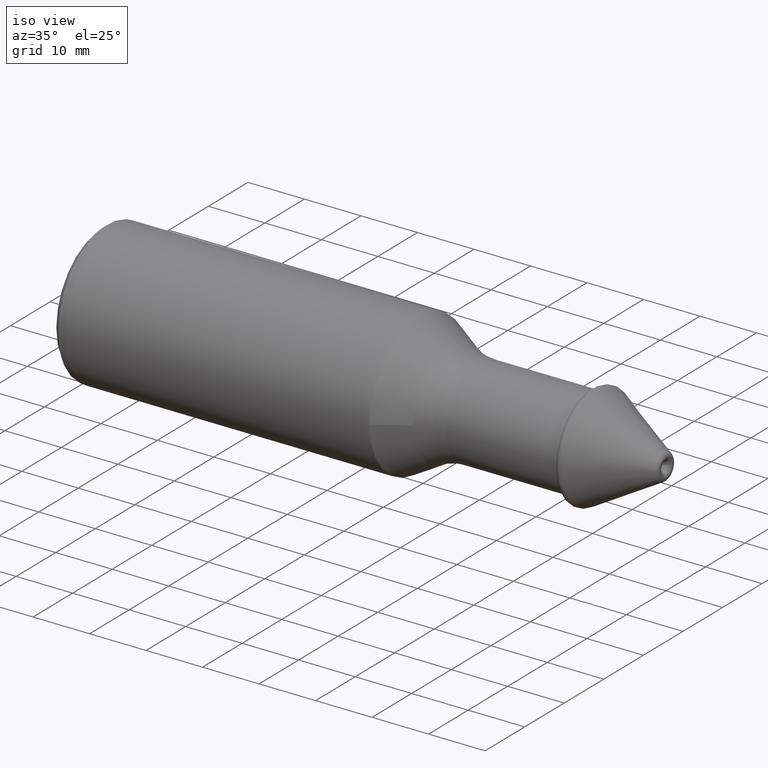
[diagram: clean part render]
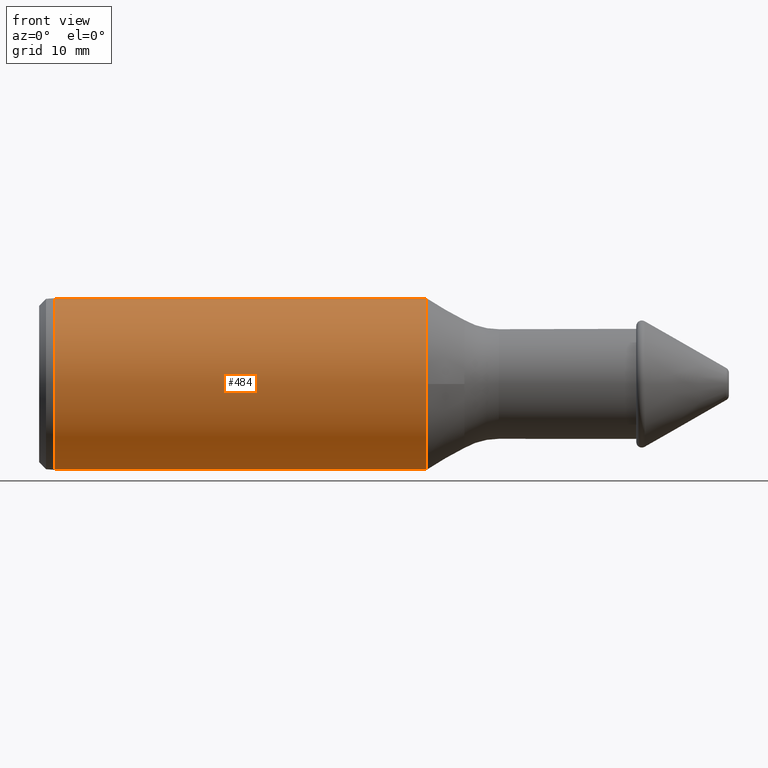
[diagram: tour spotlight — one face highlighted and labeled with its STEP entity id]
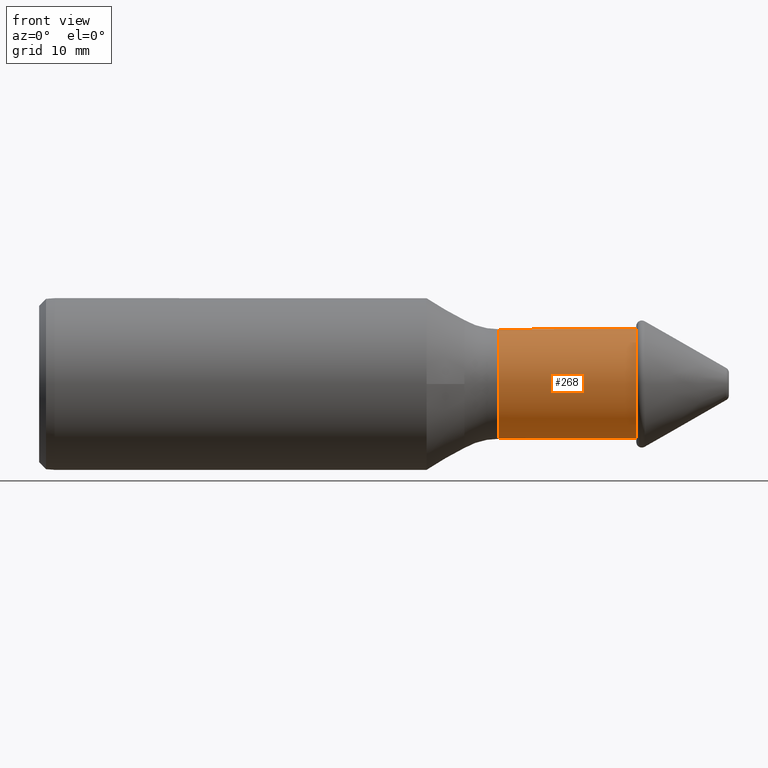
[diagram: tour spotlight — one face highlighted and labeled with its STEP entity id]
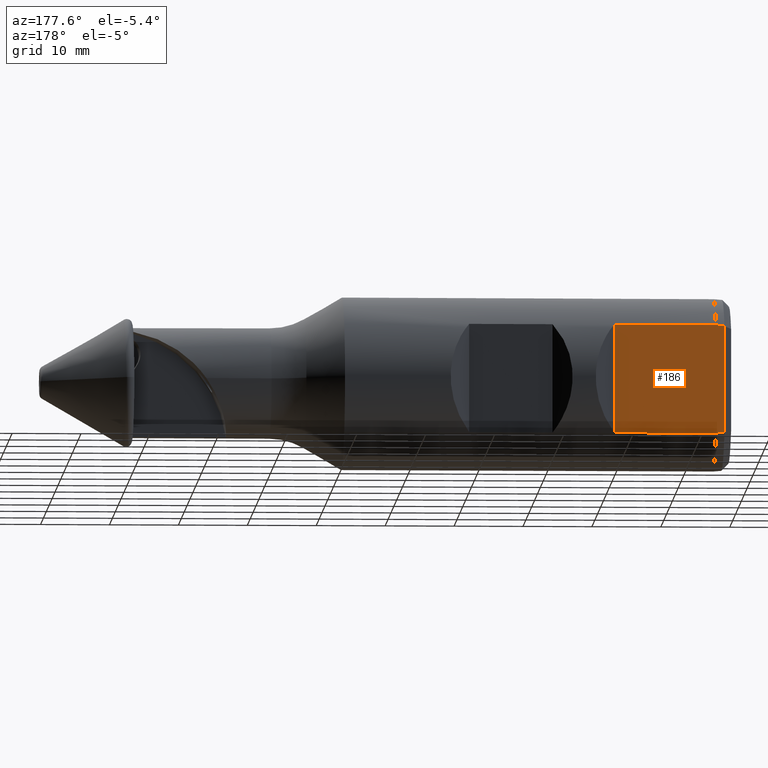
[diagram: tour spotlight — one face highlighted and labeled with its STEP entity id]
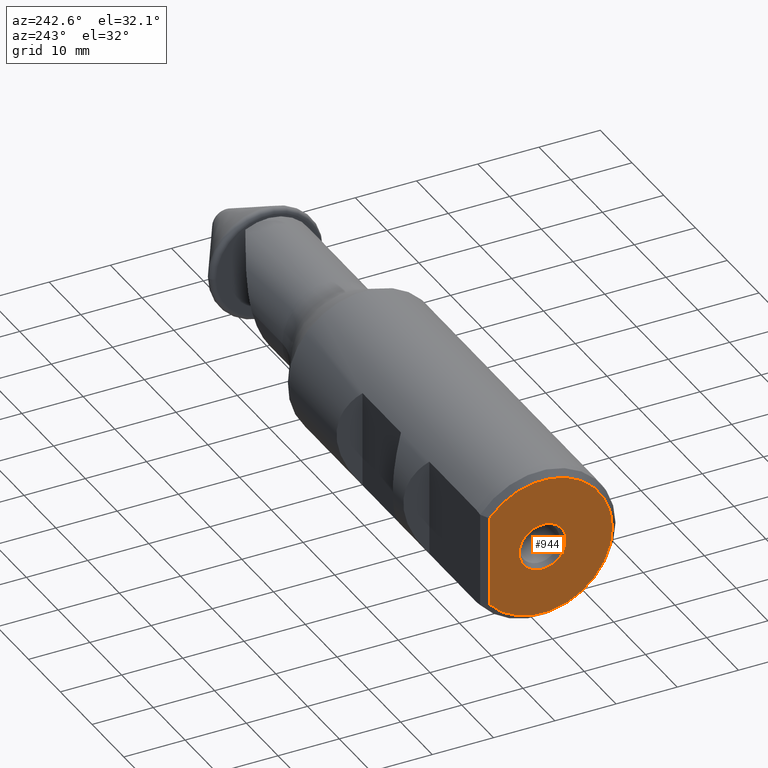
[diagram: tour spotlight — one face highlighted and labeled with its STEP entity id]
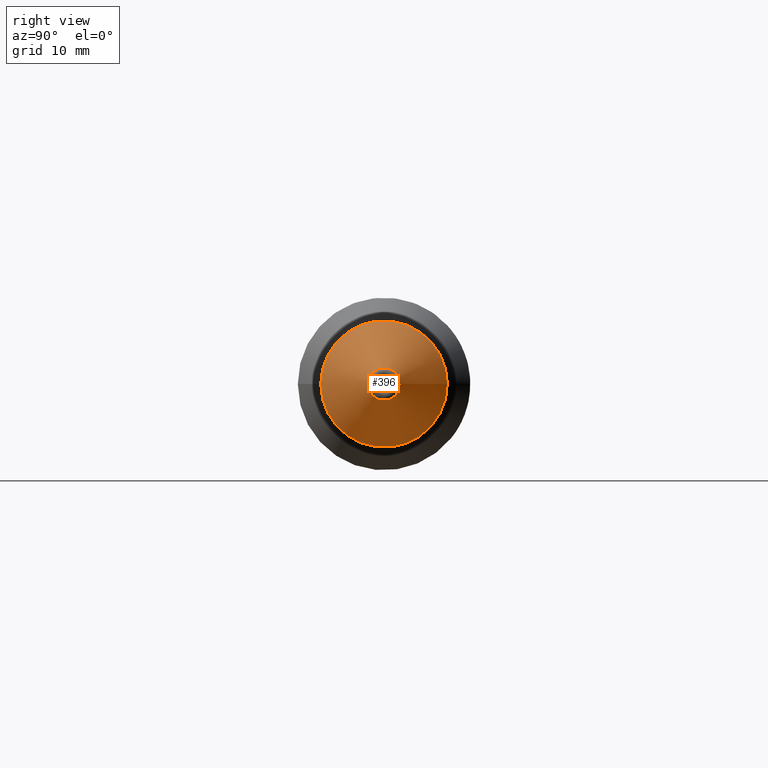
[diagram: tour spotlight — one face highlighted and labeled with its STEP entity id]
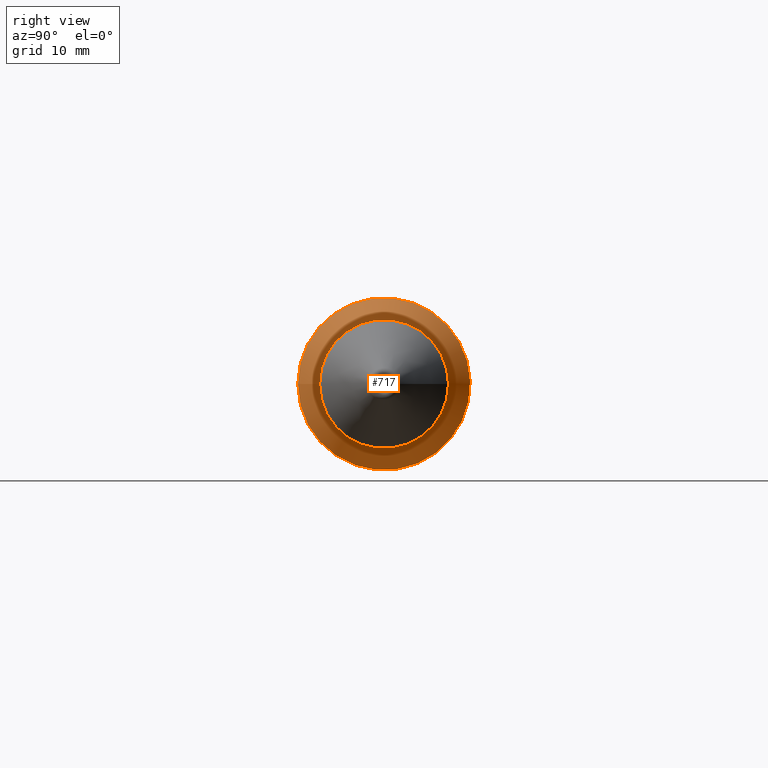
[diagram: tour spotlight — one face highlighted and labeled with its STEP entity id]
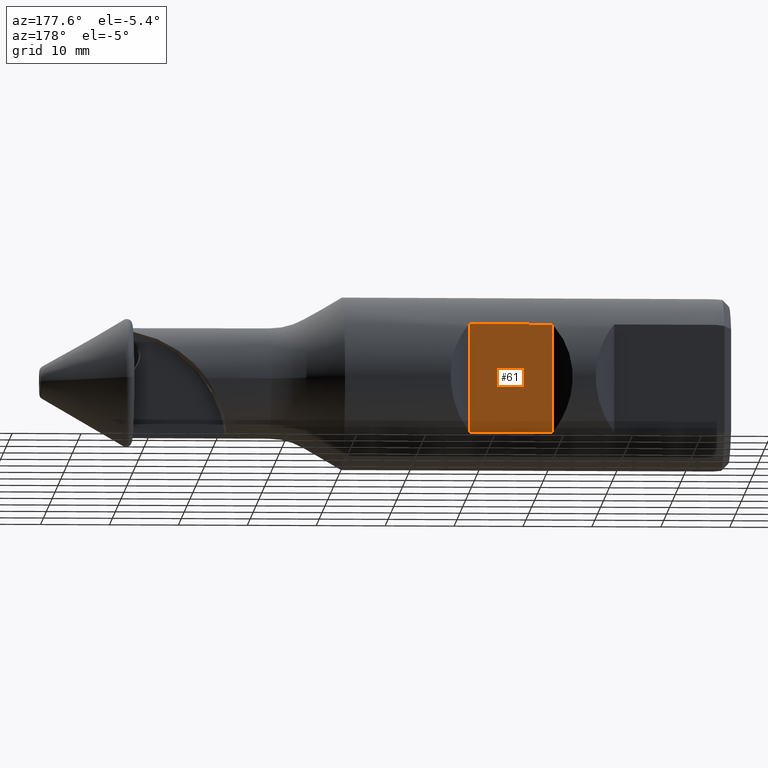
[diagram: tour spotlight — one face highlighted and labeled with its STEP entity id]
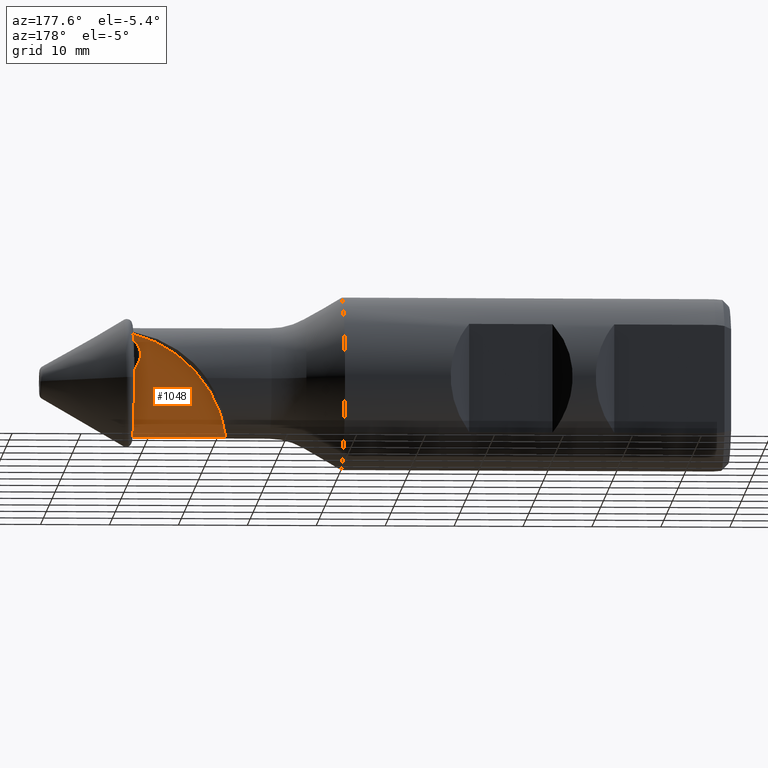
[diagram: tour spotlight — one face highlighted and labeled with its STEP entity id]
A machine part: a face-by-face anatomy tour. The part has 35 B-rep faces; the first image is the clean iso view, then the 8 largest visible faces are spotlighted one at a time (largest first), each with its STEP entity span.

Face 1 — front view, entity #484. In plain terms, the highlighted cylindrical surface (bore or boss wall) has radius 12.5 mm, axis along (1, 0, -0).
Definition (entity closure, byte-faithful):
#4 = DIRECTION ( 'NONE',  ( 1.000000000000000000, 1.331952470251674600E-016, -0.0000000000000000000 ) ) ;
#5 = ORIENTED_EDGE ( 'NONE', *, *, #593, .T. ) ;
#7 = CARTESIAN_POINT ( 'NONE',  ( -86.00282131661441600, 13.59717868338557900, -3.089404912919607500 ) ) ;
#8 = CARTESIAN_POINT ( 'NONE',  ( 0.0000000000000000000, 9.699999999999990400, -7.884161337770830600 ) ) ;
#11 = VERTEX_POINT ( 'NONE', #372 ) ;
#26 = VERTEX_POINT ( 'NONE', #647 ) ;
#30 = VECTOR ( 'NONE', #4, 1000.000000000000000 ) ;
#50 = CARTESIAN_POINT ( 'NONE',  ( -89.90000000000000600, 9.699999999999990400, 7.884161337770824400 ) ) ;
#62 = LINE ( 'NONE', #8, #30 ) ;
#65 = CARTESIAN_POINT ( 'NONE',  ( -1.051676107310939500E-015, 9.700000000000001100, -7.884161337770819100 ) ) ;
#68 = LINE ( 'NONE', #582, #358 ) ;
#89 = AXIS2_PLACEMENT_3D ( 'NONE', #769, #763, #760 ) ;
#109 = CARTESIAN_POINT ( 'NONE',  ( -80.95000000000000300, 9.699999999999979700, 7.884161337770830600 ) ) ;
#163 = EDGE_CURVE ( 'NONE', #698, #1085, #170, .T. ) ;
#170 =( BOUNDED_CURVE ( )  B_SPLINE_CURVE ( 3, ( #306, #7, #574, #50 ),
 .UNSPECIFIED., .F., .T. ) 
 B_SPLINE_CURVE_WITH_KNOTS ( ( 4, 4 ),
 ( 5.600687989903613100, 6.965682624455559400 ),
 .UNSPECIFIED. ) 
 CURVE ( )  GEOMETRIC_REPRESENTATION_ITEM ( )  RATIONAL_B_SPLINE_CURVE ( ( 1.000000000000000000, 0.8506666666666660200, 0.8506666666666660200, 1.000000000000000000 ) ) 
 REPRESENTATION_ITEM ( '' )  );
#193 = ORIENTED_EDGE ( 'NONE', *, *, #539, .T. ) ;
#202 =( BOUNDED_CURVE ( )  B_SPLINE_CURVE ( 3, ( #520, #524, #481, #474 ),
 .UNSPECIFIED., .F., .F. ) 
 B_SPLINE_CURVE_WITH_KNOTS ( ( 4, 4 ),
 ( 5.600687989903613900, 6.965682624455558500 ),
 .UNSPECIFIED. ) 
 CURVE ( )  GEOMETRIC_REPRESENTATION_ITEM ( )  RATIONAL_B_SPLINE_CURVE ( ( 1.000000000000000000, 0.8506666666666664600, 0.8506666666666664600, 1.000000000000000000 ) ) 
 REPRESENTATION_ITEM ( '' )  );
#222 = CARTESIAN_POINT ( 'NONE',  ( -50.72679323706465500, -12.50000000000001200, 0.0000000000000000000 ) ) ;
#230 = AXIS2_PLACEMENT_3D ( 'NONE', #693, #688, #696 ) ;
#262 = AXIS2_PLACEMENT_3D ( 'NONE', #734, #733, #728 ) ;
#282 =( BOUNDED_CURVE ( )  B_SPLINE_CURVE ( 3, ( #754, #862, #735, #732 ),
 .UNSPECIFIED., .F., .F. ) 
 B_SPLINE_CURVE_WITH_KNOTS ( ( 4, 4 ),
 ( 2.459095336313819900, 3.824089970865766700 ),
 .UNSPECIFIED. ) 
 CURVE ( )  GEOMETRIC_REPRESENTATION_ITEM ( )  RATIONAL_B_SPLINE_CURVE ( ( 1.000000000000000000, 0.8506666666666659000, 0.8506666666666659000, 1.000000000000000000 ) ) 
 REPRESENTATION_ITEM ( '' )  );
#306 = CARTESIAN_POINT ( 'NONE',  ( -89.90000000000000600, 9.699999999999990400, -7.884161337770820800 ) ) ;
#341 = DIRECTION ( 'NONE',  ( 1.000000000000000000, 1.331952470251674600E-016, -0.0000000000000000000 ) ) ;
#356 = ORIENTED_EDGE ( 'NONE', *, *, #819, .T. ) ;
#358 = VECTOR ( 'NONE', #644, 1000.000000000000000 ) ;
#370 = VECTOR ( 'NONE', #341, 1000.000000000000000 ) ;
#371 = CARTESIAN_POINT ( 'NONE',  ( -89.90000000000000600, 9.699999999999990400, 7.884161337770824400 ) ) ;
#372 = CARTESIAN_POINT ( 'NONE',  ( -80.95000000000000300, 9.699999999999979700, -7.884161337770830600 ) ) ;
#378 = CARTESIAN_POINT ( 'NONE',  ( -104.6499999999998900, 9.699999999999986900, 7.884161337770819100 ) ) ;
#386 = EDGE_LOOP ( 'NONE', ( #867 ) ) ;
#410 = EDGE_CURVE ( 'NONE', #615, #615, #1017, .T. ) ;
#415 = DIRECTION ( 'NONE',  ( -1.000000000000000000, -1.331952470251674600E-016, 0.0000000000000000000 ) ) ;
#419 = CARTESIAN_POINT ( 'NONE',  ( -89.90000000000000600, 9.699999999999990400, -7.884161337770820800 ) ) ;
#424 = CIRCLE ( 'NONE', #262, 12.50000000000000500 ) ;
#430 = CARTESIAN_POINT ( 'NONE',  ( -104.6499999999998900, 9.699999999999986900, -7.884161337770819100 ) ) ;
#439 = CARTESIAN_POINT ( 'NONE',  ( 0.0000000000000000000, 9.699999999999990400, 7.884161337770830600 ) ) ;
#444 = CARTESIAN_POINT ( 'NONE',  ( -68.85000000000000900, 9.699999999999990400, -7.884161337770813700 ) ) ;
#456 = EDGE_CURVE ( 'NONE', #767, #11, #282, .T. ) ;
#474 = CARTESIAN_POINT ( 'NONE',  ( -68.85000000000000900, 9.699999999999990400, 7.884161337770817300 ) ) ;
#481 = CARTESIAN_POINT ( 'NONE',  ( -64.95282131661443300, 13.59717868338557900, 3.089404912919600400 ) ) ;
#484 = ADVANCED_FACE ( 'NONE', ( #1103, #1049, #521 ), #984, .T. ) ;
#520 = CARTESIAN_POINT ( 'NONE',  ( -68.85000000000000900, 9.699999999999990400, -7.884161337770813700 ) ) ;
#521 = FACE_OUTER_BOUND ( 'NONE', #600, .T. ) ;
#524 = CARTESIAN_POINT ( 'NONE',  ( -64.95282131661443300, 13.59717868338558100, -3.089404912919604800 ) ) ;
#539 = EDGE_CURVE ( 'NONE', #1085, #706, #68, .T. ) ;
#574 = CARTESIAN_POINT ( 'NONE',  ( -86.00282131661444400, 13.59717868338557900, 3.089404912919605300 ) ) ;
#582 = CARTESIAN_POINT ( 'NONE',  ( -1.051676107310939500E-015, 9.700000000000001100, 7.884161337770819100 ) ) ;
#593 = EDGE_CURVE ( 'NONE', #994, #26, #202, .T. ) ;
#600 = EDGE_LOOP ( 'NONE', ( #966, #356, #1082, #193 ) ) ;
#615 = VERTEX_POINT ( 'NONE', #222 ) ;
#628 = ORIENTED_EDGE ( 'NONE', *, *, #456, .T. ) ;
#644 = DIRECTION ( 'NONE',  ( -1.000000000000000000, -1.331952470251674600E-016, 0.0000000000000000000 ) ) ;
#647 = CARTESIAN_POINT ( 'NONE',  ( -68.85000000000000900, 9.699999999999990400, 7.884161337770817300 ) ) ;
#654 = EDGE_CURVE ( 'NONE', #26, #767, #660, .T. ) ;
#660 = LINE ( 'NONE', #439, #826 ) ;
#688 = DIRECTION ( 'NONE',  ( 1.000000000000000000, 1.331952470251674600E-016, -0.0000000000000000000 ) ) ;
#693 = CARTESIAN_POINT ( 'NONE',  ( 0.0000000000000000000, 0.0000000000000000000, 0.0000000000000000000 ) ) ;
#696 = DIRECTION ( 'NONE',  ( -1.331952470251674600E-016, 1.000000000000000000, 0.0000000000000000000 ) ) ;
#698 = VERTEX_POINT ( 'NONE', #419 ) ;
#706 = VERTEX_POINT ( 'NONE', #378 ) ;
#728 = DIRECTION ( 'NONE',  ( 0.0000000000000000000, 1.000000000000000000, 0.0000000000000000000 ) ) ;
#732 = CARTESIAN_POINT ( 'NONE',  ( -80.95000000000000300, 9.699999999999979700, -7.884161337770830600 ) ) ;
#733 = DIRECTION ( 'NONE',  ( 1.000000000000000000, 1.223020211043870700E-016, -0.0000000000000000000 ) ) ;
#734 = CARTESIAN_POINT ( 'NONE',  ( -104.6499999999998900, -1.397236404069421000E-014, 0.0000000000000000000 ) ) ;
#735 = CARTESIAN_POINT ( 'NONE',  ( -84.84717868338560700, 13.59717868338558100, -3.089404912919606200 ) ) ;
#740 = LINE ( 'NONE', #65, #370 ) ;
#754 = CARTESIAN_POINT ( 'NONE',  ( -80.95000000000000300, 9.699999999999979700, 7.884161337770830600 ) ) ;
#760 = DIRECTION ( 'NONE',  ( 0.0000000000000000000, -1.000000000000000000, 0.0000000000000000000 ) ) ;
#763 = DIRECTION ( 'NONE',  ( -1.000000000000000000, -1.223020211043870700E-016, 0.0000000000000000000 ) ) ;
#764 = ORIENTED_EDGE ( 'NONE', *, *, #807, .T. ) ;
#767 = VERTEX_POINT ( 'NONE', #109 ) ;
#769 = CARTESIAN_POINT ( 'NONE',  ( -50.72679323706465500, -7.377446869157477400E-015, 0.0000000000000000000 ) ) ;
#802 = EDGE_LOOP ( 'NONE', ( #628, #764, #5, #907 ) ) ;
#807 = EDGE_CURVE ( 'NONE', #11, #994, #62, .T. ) ;
#819 = EDGE_CURVE ( 'NONE', #1032, #698, #740, .T. ) ;
#826 = VECTOR ( 'NONE', #415, 1000.000000000000000 ) ;
#862 = CARTESIAN_POINT ( 'NONE',  ( -84.84717868338560700, 13.59717868338558100, 3.089404912919606200 ) ) ;
#867 = ORIENTED_EDGE ( 'NONE', *, *, #410, .T. ) ;
#907 = ORIENTED_EDGE ( 'NONE', *, *, #654, .T. ) ;
#949 = EDGE_CURVE ( 'NONE', #706, #1032, #424, .T. ) ;
#966 = ORIENTED_EDGE ( 'NONE', *, *, #949, .T. ) ;
#984 = CYLINDRICAL_SURFACE ( 'NONE', #230, 12.50000000000000500 ) ;
#994 = VERTEX_POINT ( 'NONE', #444 ) ;
#1017 = CIRCLE ( 'NONE', #89, 12.50000000000000500 ) ;
#1032 = VERTEX_POINT ( 'NONE', #430 ) ;
#1049 = FACE_BOUND ( 'NONE', #802, .T. ) ;
#1082 = ORIENTED_EDGE ( 'NONE', *, *, #163, .T. ) ;
#1085 = VERTEX_POINT ( 'NONE', #371 ) ;
#1103 = FACE_OUTER_BOUND ( 'NONE', #386, .T. ) ;

Face 2 — front view, entity #268. In plain terms, the highlighted cylindrical surface (bore or boss wall) has radius 8 mm, axis along (1, 0, -0).
Definition (entity closure, byte-faithful):
#31 = B_SPLINE_CURVE_WITH_KNOTS ( 'NONE', 3,
 ( #667, #678, #649, #645, #643, #638, #636, #634, #632, #622, #621, #617, #607, #602, #596, #592, #589, #583, #575, #572, #567, #559, #554, #546, #540, #537, #536, #529, #526, #519, #515, #510, #505, #500, #498, #491, #487, #482, #468, #465 ),
 .UNSPECIFIED., .F., .F.,
 ( 4, 2, 2, 2, 2, 2, 2, 2, 2, 2, 2, 2, 2, 2, 2, 2, 2, 2, 2, 4 ),
 ( 0.002660857784023647600, 0.004280530319342982900, 0.005900202854662318600, 0.009139547925300996900, 0.01075922046062034200, 0.01237889299593968400, 0.01399856553125902900, 0.01561823806657837300, 0.01723791060189771800, 0.01804774686955739500, 0.01885758313721707200, 0.02047725567253642600, 0.02128709194019610600, 0.02209692820785578300, 0.02290676447551546000, 0.02371660074317514000, 0.02533627327849449800, 0.02614610954615417100, 0.02695594581381384800, 0.02857561834913320200 ),
 .UNSPECIFIED. ) ;
#35 = AXIS2_PLACEMENT_3D ( 'NONE', #789, #785, #781 ) ;
#119 = CARTESIAN_POINT ( 'NONE',  ( -20.32288670554150700, -3.658987650883321000E-015, 0.0000000000000000000 ) ) ;
#132 = CARTESIAN_POINT ( 'NONE',  ( 9.594751758996267200, 0.0000000000000000000, 0.0000000000000000000 ) ) ;
#138 = EDGE_CURVE ( 'NONE', #166, #937, #242, .T. ) ;
#145 = VECTOR ( 'NONE', #635, 1000.000000000000000 ) ;
#166 = VERTEX_POINT ( 'NONE', #1087 ) ;
#182 = CIRCLE ( 'NONE', #35, 8.000000000000005300 ) ;
#218 = DIRECTION ( 'NONE',  ( 0.0000000000000000000, -1.000000000000000000, 0.0000000000000000000 ) ) ;
#234 = DIRECTION ( 'NONE',  ( 1.000000000000000000, 1.223020211043870700E-016, -0.0000000000000000000 ) ) ;
#236 = CARTESIAN_POINT ( 'NONE',  ( -40.25299999999999300, 7.999999999999998200, 0.0000000000000000000 ) ) ;
#242 = CIRCLE ( 'NONE', #948, 8.000000000000003600 ) ;
#247 = EDGE_LOOP ( 'NONE', ( #397, #992, #271 ) ) ;
#268 = ADVANCED_FACE ( 'NONE', ( #288, #435 ), #305, .T. ) ;
#271 = ORIENTED_EDGE ( 'NONE', *, *, #523, .T. ) ;
#272 = CARTESIAN_POINT ( 'NONE',  ( -33.93292565115886800, 0.8999999999999960300, -7.949213797602883600 ) ) ;
#288 = FACE_OUTER_BOUND ( 'NONE', #247, .T. ) ;
#305 = CYLINDRICAL_SURFACE ( 'NONE', #1001, 8.000000000000003600 ) ;
#313 = ORIENTED_EDGE ( 'NONE', *, *, #400, .T. ) ;
#397 = ORIENTED_EDGE ( 'NONE', *, *, #138, .F. ) ;
#400 = EDGE_CURVE ( 'NONE', #1069, #1069, #182, .T. ) ;
#412 = EDGE_LOOP ( 'NONE', ( #313 ) ) ;
#435 = FACE_OUTER_BOUND ( 'NONE', #412, .T. ) ;
#465 = CARTESIAN_POINT ( 'NONE',  ( -33.93292565115886800, 0.8999999999999960300, -7.949213797602883600 ) ) ;
#468 = CARTESIAN_POINT ( 'NONE',  ( -33.92445682185965000, 1.445169591210167900, -7.887490381352951600 ) ) ;
#482 = CARTESIAN_POINT ( 'NONE',  ( -33.90843266060628700, 1.974324684642323200, -7.771370254246904500 ) ) ;
#487 = CARTESIAN_POINT ( 'NONE',  ( -33.86883124984747400, 2.744886041869663500, -7.519217978912069000 ) ) ;
#491 = CARTESIAN_POINT ( 'NONE',  ( -33.85298081074810700, 2.997845896102764300, -7.422069446547017600 ) ) ;
#498 = CARTESIAN_POINT ( 'NONE',  ( -33.81452494976558400, 3.495737434117849800, -7.200973175748825600 ) ) ;
#500 = CARTESIAN_POINT ( 'NONE',  ( -33.79188898725581700, 3.740234825944937400, -7.076991493333121500 ) ) ;
#505 = CARTESIAN_POINT ( 'NONE',  ( -33.71306894689184500, 4.444449498936963400, -6.673794217016427100 ) ) ;
#510 = CARTESIAN_POINT ( 'NONE',  ( -33.64576771661349900, 4.881089308303585600, -6.361133414489057900 ) ) ;
#515 = CARTESIAN_POINT ( 'NONE',  ( -33.51179352318781200, 5.486530997701020600, -5.828399471502196500 ) ) ;
#519 = CARTESIAN_POINT ( 'NONE',  ( -33.46129098539860500, 5.680655393279296000, -5.639241446499262600 ) ) ;
#523 = EDGE_CURVE ( 'NONE', #720, #937, #997, .T. ) ;
#526 = CARTESIAN_POINT ( 'NONE',  ( -33.34964317370403800, 6.043033547078783500, -5.249060424303444000 ) ) ;
#529 = CARTESIAN_POINT ( 'NONE',  ( -33.28829952166881200, 6.212461169415408200, -5.047144085227889000 ) ) ;
#536 = CARTESIAN_POINT ( 'NONE',  ( -33.15316451937028600, 6.528704886601293100, -4.630804433596119400 ) ) ;
#537 = CARTESIAN_POINT ( 'NONE',  ( -33.07937490310885700, 6.675517732562543200, -4.416378142572222400 ) ) ;
#540 = CARTESIAN_POINT ( 'NONE',  ( -32.91774605103611200, 6.946915663664613700, -3.975838987921659100 ) ) ;
#546 = CARTESIAN_POINT ( 'NONE',  ( -32.82951124416082000, 7.071956175147594300, -3.748771385030834000 ) ) ;
#554 = CARTESIAN_POINT ( 'NONE',  ( -32.54364134974203900, 7.410524346919400400, -3.057373556739496800 ) ) ;
#559 = CARTESIAN_POINT ( 'NONE',  ( -32.32863373039160100, 7.584069032037691100, -2.591642035755661300 ) ) ;
#567 = CARTESIAN_POINT ( 'NONE',  ( -31.96614795265584500, 7.777060981815631100, -1.891031561389989300 ) ) ;
#572 = CARTESIAN_POINT ( 'NONE',  ( -31.83864985359975800, 7.830095342988127700, -1.657138302966171300 ) ) ;
#575 = CARTESIAN_POINT ( 'NONE',  ( -31.56964600411117800, 7.914670258932195800, -1.189325492796685200 ) ) ;
#583 = CARTESIAN_POINT ( 'NONE',  ( -31.42852163128974400, 7.945957897875567600, -0.9562061135437287500 ) ) ;
#589 = CARTESIAN_POINT ( 'NONE',  ( -30.99231093633774500, 8.008543923875318900, -0.2711685913190808300 ) ) ;
#592 = CARTESIAN_POINT ( 'NONE',  ( -30.68186168858170100, 8.009667302748008300, 0.1709855389157407500 ) ) ;
#596 = CARTESIAN_POINT ( 'NONE',  ( -30.02186765933203100, 7.945458259473771700, 1.026498612852893900 ) ) ;
#602 = CARTESIAN_POINT ( 'NONE',  ( -29.66961442851430100, 7.879196290990491600, 1.442584100625695000 ) ) ;
#607 = CARTESIAN_POINT ( 'NONE',  ( -28.94217140413941900, 7.694078256925862100, 2.227990766506241300 ) ) ;
#617 = CARTESIAN_POINT ( 'NONE',  ( -28.56677462479632400, 7.575668326207496900, 2.598299404032840900 ) ) ;
#621 = CARTESIAN_POINT ( 'NONE',  ( -27.79307466874585200, 7.297986925419852600, 3.298681133135154700 ) ) ;
#622 = CARTESIAN_POINT ( 'NONE',  ( -27.39477182453786200, 7.138641090190685800, 3.628726656844302000 ) ) ;
#632 = CARTESIAN_POINT ( 'NONE',  ( -26.57505206132258400, 6.786445010542857800, 4.251119603531437400 ) ) ;
#634 = CARTESIAN_POINT ( 'NONE',  ( -26.15551554261049500, 6.594301250389698900, 4.541817369072335400 ) ) ;
#635 = DIRECTION ( 'NONE',  ( 1.000000000000000000, 1.223020211043870700E-016, -0.0000000000000000000 ) ) ;
#636 = CARTESIAN_POINT ( 'NONE',  ( -24.88381809545411000, 5.988153466240863300, 5.347305306819575500 ) ) ;
#638 = CARTESIAN_POINT ( 'NONE',  ( -24.01242452520047300, 5.541310801003485900, 5.801292478002777900 ) ) ;
#643 = CARTESIAN_POINT ( 'NONE',  ( -22.65966808270370700, 4.844681616271471600, 6.373330368741577000 ) ) ;
#645 = CARTESIAN_POINT ( 'NONE',  ( -22.19982569347562400, 4.607425907179542300, 6.545996879147995000 ) ) ;
#649 = CARTESIAN_POINT ( 'NONE',  ( -21.27097131529038200, 4.138343815909637500, 6.852193743122488600 ) ) ;
#658 = CARTESIAN_POINT ( 'NONE',  ( 9.594751758996267200, 0.8999999999999982500, -7.949213797602883600 ) ) ;
#667 = CARTESIAN_POINT ( 'NONE',  ( -20.32288670554150700, 3.683311204765778300, 7.101634922244806500 ) ) ;
#678 = CARTESIAN_POINT ( 'NONE',  ( -20.80122182236606300, 3.905889223906608100, 6.986193320302128900 ) ) ;
#720 = VERTEX_POINT ( 'NONE', #272 ) ;
#746 = DIRECTION ( 'NONE',  ( 1.000000000000000000, 1.223561792411906800E-016, -0.0000000000000000000 ) ) ;
#781 = DIRECTION ( 'NONE',  ( 0.0000000000000000000, 1.000000000000000000, 0.0000000000000000000 ) ) ;
#785 = DIRECTION ( 'NONE',  ( 1.000000000000000000, 1.223020211043870700E-016, -0.0000000000000000000 ) ) ;
#789 = CARTESIAN_POINT ( 'NONE',  ( -40.25299999999999300, -6.096480787635008300E-015, 0.0000000000000000000 ) ) ;
#900 = CARTESIAN_POINT ( 'NONE',  ( -20.32288670554150700, 0.8999999999999971400, -7.949213797602883600 ) ) ;
#937 = VERTEX_POINT ( 'NONE', #900 ) ;
#948 = AXIS2_PLACEMENT_3D ( 'NONE', #119, #746, #218 ) ;
#975 = EDGE_CURVE ( 'NONE', #166, #720, #31, .T. ) ;
#992 = ORIENTED_EDGE ( 'NONE', *, *, #975, .T. ) ;
#997 = LINE ( 'NONE', #658, #145 ) ;
#1001 = AXIS2_PLACEMENT_3D ( 'NONE', #132, #234, #1094 ) ;
#1069 = VERTEX_POINT ( 'NONE', #236 ) ;
#1087 = CARTESIAN_POINT ( 'NONE',  ( -20.32288670554150700, 3.683311204765778300, 7.101634922244806500 ) ) ;
#1094 = DIRECTION ( 'NONE',  ( -2.168404344971007900E-016, 1.000000000000000000, 0.0000000000000000000 ) ) ;

Face 3 — auxiliary view, entity #186. In plain terms, the highlighted planar face has unit normal (-0, 1, 0).
Definition (entity closure, byte-faithful):
#13 = CARTESIAN_POINT ( 'NONE',  ( -105.9000000000000100, 9.699999999999988600, 7.724635913750236500 ) ) ;
#65 = CARTESIAN_POINT ( 'NONE',  ( -1.051676107310939500E-015, 9.700000000000001100, -7.884161337770819100 ) ) ;
#68 = LINE ( 'NONE', #582, #358 ) ;
#86 = AXIS2_PLACEMENT_3D ( 'NONE', #1076, #1009, #1003 ) ;
#90 = EDGE_CURVE ( 'NONE', #811, #1055, #366, .T. ) ;
#93 = VECTOR ( 'NONE', #744, 1000.000000000000000 ) ;
#102 = ORIENTED_EDGE ( 'NONE', *, *, #988, .F. ) ;
#104 = ORIENTED_EDGE ( 'NONE', *, *, #970, .F. ) ;
#186 = ADVANCED_FACE ( 'NONE', ( #680 ), #1015, .T. ) ;
#210 = ORIENTED_EDGE ( 'NONE', *, *, #90, .F. ) ;
#213 = CARTESIAN_POINT ( 'NONE',  ( -105.9000000000000100, 9.699999999999988600, 10.00000000000000000 ) ) ;
#341 = DIRECTION ( 'NONE',  ( 1.000000000000000000, 1.331952470251674600E-016, -0.0000000000000000000 ) ) ;
#358 = VECTOR ( 'NONE', #644, 1000.000000000000000 ) ;
#366 = LINE ( 'NONE', #213, #93 ) ;
#370 = VECTOR ( 'NONE', #341, 1000.000000000000000 ) ;
#371 = CARTESIAN_POINT ( 'NONE',  ( -89.90000000000000600, 9.699999999999990400, 7.884161337770824400 ) ) ;
#378 = CARTESIAN_POINT ( 'NONE',  ( -104.6499999999998900, 9.699999999999986900, 7.884161337770819100 ) ) ;
#419 = CARTESIAN_POINT ( 'NONE',  ( -89.90000000000000600, 9.699999999999990400, -7.884161337770820800 ) ) ;
#430 = CARTESIAN_POINT ( 'NONE',  ( -104.6499999999998900, 9.699999999999986900, -7.884161337770819100 ) ) ;
#432 = B_SPLINE_CURVE_WITH_KNOTS ( 'NONE', 3,
 ( #737, #722, #701, #691 ),
 .UNSPECIFIED., .F., .F.,
 ( 4, 4 ),
 ( 0.02309770409454794300, 0.02435779603977669000 ),
 .UNSPECIFIED. ) ;
#433 = CARTESIAN_POINT ( 'NONE',  ( -105.9000000000000100, 9.699999999999988600, -7.724635913753283800 ) ) ;
#449 = CARTESIAN_POINT ( 'NONE',  ( -104.6499999999998900, 9.699999999999986900, -7.884161337770819100 ) ) ;
#451 = CARTESIAN_POINT ( 'NONE',  ( -105.0667078385156300, 9.699999999999988600, -7.831307543858785400 ) ) ;
#455 = EDGE_LOOP ( 'NONE', ( #793, #530, #673, #102, #210, #104 ) ) ;
#513 = EDGE_CURVE ( 'NONE', #1085, #698, #742, .T. ) ;
#530 = ORIENTED_EDGE ( 'NONE', *, *, #513, .T. ) ;
#539 = EDGE_CURVE ( 'NONE', #1085, #706, #68, .T. ) ;
#582 = CARTESIAN_POINT ( 'NONE',  ( -1.051676107310939500E-015, 9.700000000000001100, 7.884161337770819100 ) ) ;
#640 = DIRECTION ( 'NONE',  ( 0.0000000000000000000, 0.0000000000000000000, -1.000000000000000000 ) ) ;
#644 = DIRECTION ( 'NONE',  ( -1.000000000000000000, -1.331952470251674600E-016, 0.0000000000000000000 ) ) ;
#648 = CARTESIAN_POINT ( 'NONE',  ( -89.90000000000000600, 9.699999999999990400, 10.00000000000000000 ) ) ;
#652 = CARTESIAN_POINT ( 'NONE',  ( -105.9000000000000100, 9.699999999999988600, -7.724635913753283800 ) ) ;
#659 = CARTESIAN_POINT ( 'NONE',  ( -105.4833756513085200, 9.699999999999988600, -7.778138934283055600 ) ) ;
#673 = ORIENTED_EDGE ( 'NONE', *, *, #819, .F. ) ;
#680 = FACE_OUTER_BOUND ( 'NONE', #455, .T. ) ;
#691 = CARTESIAN_POINT ( 'NONE',  ( -105.9000000000000100, 9.699999999999988600, 7.724635913750236500 ) ) ;
#698 = VERTEX_POINT ( 'NONE', #419 ) ;
#701 = CARTESIAN_POINT ( 'NONE',  ( -105.4833825353747900, 9.699999999999988600, 7.778138050229258300 ) ) ;
#706 = VERTEX_POINT ( 'NONE', #378 ) ;
#722 = CARTESIAN_POINT ( 'NONE',  ( -105.0667140825172700, 9.699999999999988600, 7.831306751891022900 ) ) ;
#737 = CARTESIAN_POINT ( 'NONE',  ( -104.6499999999998900, 9.699999999999986900, 7.884161337770819100 ) ) ;
#740 = LINE ( 'NONE', #65, #370 ) ;
#742 = LINE ( 'NONE', #648, #772 ) ;
#744 = DIRECTION ( 'NONE',  ( 0.0000000000000000000, 0.0000000000000000000, -1.000000000000000000 ) ) ;
#772 = VECTOR ( 'NONE', #640, 1000.000000000000000 ) ;
#776 = B_SPLINE_CURVE_WITH_KNOTS ( 'NONE', 3,
 ( #652, #659, #451, #449 ),
 .UNSPECIFIED., .F., .F.,
 ( 4, 4 ),
 ( 0.02194251888729410700, 0.02320234446291399500 ),
 .UNSPECIFIED. ) ;
#793 = ORIENTED_EDGE ( 'NONE', *, *, #539, .F. ) ;
#811 = VERTEX_POINT ( 'NONE', #13 ) ;
#819 = EDGE_CURVE ( 'NONE', #1032, #698, #740, .T. ) ;
#970 = EDGE_CURVE ( 'NONE', #706, #811, #432, .T. ) ;
#988 = EDGE_CURVE ( 'NONE', #1055, #1032, #776, .T. ) ;
#1003 = DIRECTION ( 'NONE',  ( -1.000000000000000000, -1.084202172485504400E-016, 0.0000000000000000000 ) ) ;
#1009 = DIRECTION ( 'NONE',  ( -1.084202172485504400E-016, 1.000000000000000000, 0.0000000000000000000 ) ) ;
#1015 = PLANE ( 'NONE',  #86 ) ;
#1032 = VERTEX_POINT ( 'NONE', #430 ) ;
#1055 = VERTEX_POINT ( 'NONE', #433 ) ;
#1076 = CARTESIAN_POINT ( 'NONE',  ( -89.90000000000000600, 9.699999999999990400, 10.00000000000000000 ) ) ;
#1085 = VERTEX_POINT ( 'NONE', #371 ) ;

Face 4 — auxiliary view, entity #944. In plain terms, the highlighted planar face has unit normal (-1, -0, 0).
Definition (entity closure, byte-faithful):
#43 = VERTEX_POINT ( 'NONE', #651 ) ;
#81 = DIRECTION ( 'NONE',  ( 0.0000000000000000000, 0.0000000000000000000, -1.000000000000000000 ) ) ;
#98 = CARTESIAN_POINT ( 'NONE',  ( -106.9000000000000100, 8.699999999999976200, 10.00000000000000000 ) ) ;
#108 = VERTEX_POINT ( 'NONE', #219 ) ;
#212 = AXIS2_PLACEMENT_3D ( 'NONE', #847, #808, #806 ) ;
#219 = CARTESIAN_POINT ( 'NONE',  ( -106.9000000000000100, 3.827350269189619500, 0.0000000000000000000 ) ) ;
#232 = FACE_OUTER_BOUND ( 'NONE', #1054, .T. ) ;
#270 = DIRECTION ( 'NONE',  ( 0.0000000000000000000, 1.000000000000000000, 0.0000000000000000000 ) ) ;
#274 = DIRECTION ( 'NONE',  ( 1.000000000000000000, 1.223020211043870700E-016, -0.0000000000000000000 ) ) ;
#276 = CIRCLE ( 'NONE', #690, 11.40000000000000000 ) ;
#279 = CARTESIAN_POINT ( 'NONE',  ( -106.9000000000000100, -1.424754358817909300E-014, 0.0000000000000000000 ) ) ;
#381 = DIRECTION ( 'NONE',  ( 0.0000000000000000000, 1.000000000000000000, 0.0000000000000000000 ) ) ;
#387 = DIRECTION ( 'NONE',  ( 1.000000000000000000, 3.020348979285187600E-016, -0.0000000000000000000 ) ) ;
#390 = CARTESIAN_POINT ( 'NONE',  ( -106.9000000000000100, -1.908943046349936100E-014, 0.0000000000000000000 ) ) ;
#402 = LINE ( 'NONE', #98, #457 ) ;
#446 = CARTESIAN_POINT ( 'NONE',  ( -106.9000000000000100, 8.699999999999976200, -7.366817494685218300 ) ) ;
#457 = VECTOR ( 'NONE', #81, 1000.000000000000000 ) ;
#566 = FACE_BOUND ( 'NONE', #893, .T. ) ;
#613 = ORIENTED_EDGE ( 'NONE', *, *, #657, .T. ) ;
#651 = CARTESIAN_POINT ( 'NONE',  ( -106.9000000000000100, 8.699999999999976200, 7.366817494685218300 ) ) ;
#657 = EDGE_CURVE ( 'NONE', #108, #108, #980, .T. ) ;
#687 = ORIENTED_EDGE ( 'NONE', *, *, #792, .T. ) ;
#690 = AXIS2_PLACEMENT_3D ( 'NONE', #279, #274, #270 ) ;
#792 = EDGE_CURVE ( 'NONE', #43, #1008, #402, .T. ) ;
#803 = AXIS2_PLACEMENT_3D ( 'NONE', #390, #387, #381 ) ;
#806 = DIRECTION ( 'NONE',  ( 1.223020211043870700E-016, -1.000000000000000000, 0.0000000000000000000 ) ) ;
#808 = DIRECTION ( 'NONE',  ( -1.000000000000000000, -1.223020211043870700E-016, 0.0000000000000000000 ) ) ;
#810 = PLANE ( 'NONE',  #212 ) ;
#847 = CARTESIAN_POINT ( 'NONE',  ( -106.9000000000000100, 11.39999999999998600, 0.0000000000000000000 ) ) ;
#893 = EDGE_LOOP ( 'NONE', ( #613 ) ) ;
#944 = ADVANCED_FACE ( 'NONE', ( #566, #232 ), #810, .T. ) ;
#980 = CIRCLE ( 'NONE', #803, 3.827350269189638600 ) ;
#1008 = VERTEX_POINT ( 'NONE', #446 ) ;
#1011 = ORIENTED_EDGE ( 'NONE', *, *, #1105, .F. ) ;
#1054 = EDGE_LOOP ( 'NONE', ( #1011, #687 ) ) ;
#1105 = EDGE_CURVE ( 'NONE', #43, #1008, #276, .T. ) ;

Face 5 — right view, entity #396. In plain terms, the highlighted conical surface has half-angle 30 deg.
Definition (entity closure, byte-faithful):
#27 = ORIENTED_EDGE ( 'NONE', *, *, #331, .T. ) ;
#69 = CONICAL_SURFACE ( 'NONE', #1104, 2.344158026625180900, 0.5235987755982930400 ) ;
#91 = EDGE_LOOP ( 'NONE', ( #27 ) ) ;
#118 = VERTEX_POINT ( 'NONE', #255 ) ;
#205 = CARTESIAN_POINT ( 'NONE',  ( -7.296493402938520700, 2.344158026625179600, 0.0000000000000000000 ) ) ;
#255 = CARTESIAN_POINT ( 'NONE',  ( -19.12288670554151400, 9.172129383425309300, 0.0000000000000000000 ) ) ;
#331 = EDGE_CURVE ( 'NONE', #118, #118, #797, .T. ) ;
#376 = FACE_BOUND ( 'NONE', #1010, .T. ) ;
#396 = ADVANCED_FACE ( 'NONE', ( #494, #376 ), #69, .T. ) ;
#494 = FACE_OUTER_BOUND ( 'NONE', #91, .T. ) ;
#561 = VERTEX_POINT ( 'NONE', #205 ) ;
#797 = CIRCLE ( 'NONE', #834, 9.172129383425312800 ) ;
#815 = DIRECTION ( 'NONE',  ( 0.0000000000000000000, -1.000000000000000000, 0.0000000000000000000 ) ) ;
#834 = AXIS2_PLACEMENT_3D ( 'NONE', #921, #915, #909 ) ;
#841 = EDGE_CURVE ( 'NONE', #561, #561, #868, .T. ) ;
#853 = CARTESIAN_POINT ( 'NONE',  ( -7.296493402938520700, -1.413191213600779000E-015, 0.0000000000000000000 ) ) ;
#864 = DIRECTION ( 'NONE',  ( -1.000000000000000000, -1.223561792411906800E-016, 0.0000000000000000000 ) ) ;
#868 = CIRCLE ( 'NONE', #955, 2.344158026625180900 ) ;
#909 = DIRECTION ( 'NONE',  ( 0.0000000000000000000, 1.000000000000000000, 0.0000000000000000000 ) ) ;
#913 = DIRECTION ( 'NONE',  ( 1.000000000000000000, 1.223561792411906800E-016, -0.0000000000000000000 ) ) ;
#915 = DIRECTION ( 'NONE',  ( 1.000000000000000000, 1.223561792411906800E-016, -0.0000000000000000000 ) ) ;
#921 = CARTESIAN_POINT ( 'NONE',  ( -19.12288670554151400, -2.860223512310887900E-015, 0.0000000000000000000 ) ) ;
#926 = ORIENTED_EDGE ( 'NONE', *, *, #841, .F. ) ;
#946 = DIRECTION ( 'NONE',  ( 0.0000000000000000000, 1.000000000000000000, 0.0000000000000000000 ) ) ;
#955 = AXIS2_PLACEMENT_3D ( 'NONE', #958, #913, #946 ) ;
#958 = CARTESIAN_POINT ( 'NONE',  ( -7.296493402938520700, -1.413191213600779000E-015, 0.0000000000000000000 ) ) ;
#1010 = EDGE_LOOP ( 'NONE', ( #926 ) ) ;
#1104 = AXIS2_PLACEMENT_3D ( 'NONE', #853, #864, #815 ) ;

Face 6 — right view, entity #717. In plain terms, the highlighted conical surface has half-angle 30 deg.
Definition (entity closure, byte-faithful):
#46 = DIRECTION ( 'NONE',  ( 0.0000000000000000000, 1.000000000000000000, 0.0000000000000000000 ) ) ;
#51 = DIRECTION ( 'NONE',  ( 1.000000000000000000, 1.223020211043870700E-016, -0.0000000000000000000 ) ) ;
#59 = CARTESIAN_POINT ( 'NONE',  ( -45.25299999999999300, -6.707990893156943400E-015, 0.0000000000000000000 ) ) ;
#67 = ORIENTED_EDGE ( 'NONE', *, *, #410, .F. ) ;
#80 = VERTEX_POINT ( 'NONE', #211 ) ;
#89 = AXIS2_PLACEMENT_3D ( 'NONE', #769, #763, #760 ) ;
#190 = AXIS2_PLACEMENT_3D ( 'NONE', #283, #326, #364 ) ;
#211 = CARTESIAN_POINT ( 'NONE',  ( -45.25299999999999300, 9.339734693784917500, 0.0000000000000000000 ) ) ;
#222 = CARTESIAN_POINT ( 'NONE',  ( -50.72679323706465500, -12.50000000000001200, 0.0000000000000000000 ) ) ;
#245 = ORIENTED_EDGE ( 'NONE', *, *, #799, .F. ) ;
#283 = CARTESIAN_POINT ( 'NONE',  ( -45.25299999999999300, -6.707990893156943400E-015, 0.0000000000000000000 ) ) ;
#326 = DIRECTION ( 'NONE',  ( -1.000000000000000000, -1.223020211043870700E-016, 0.0000000000000000000 ) ) ;
#364 = DIRECTION ( 'NONE',  ( 0.0000000000000000000, -1.000000000000000000, 0.0000000000000000000 ) ) ;
#410 = EDGE_CURVE ( 'NONE', #615, #615, #1017, .T. ) ;
#460 = CIRCLE ( 'NONE', #791, 9.339734693784924600 ) ;
#471 = EDGE_LOOP ( 'NONE', ( #67 ) ) ;
#477 = CONICAL_SURFACE ( 'NONE', #190, 9.339734693784924600, 0.5235945701827289200 ) ;
#547 = FACE_OUTER_BOUND ( 'NONE', #471, .T. ) ;
#615 = VERTEX_POINT ( 'NONE', #222 ) ;
#717 = ADVANCED_FACE ( 'NONE', ( #547, #1013 ), #477, .T. ) ;
#760 = DIRECTION ( 'NONE',  ( 0.0000000000000000000, -1.000000000000000000, 0.0000000000000000000 ) ) ;
#763 = DIRECTION ( 'NONE',  ( -1.000000000000000000, -1.223020211043870700E-016, 0.0000000000000000000 ) ) ;
#769 = CARTESIAN_POINT ( 'NONE',  ( -50.72679323706465500, -7.377446869157477400E-015, 0.0000000000000000000 ) ) ;
#791 = AXIS2_PLACEMENT_3D ( 'NONE', #59, #51, #46 ) ;
#799 = EDGE_CURVE ( 'NONE', #80, #80, #460, .T. ) ;
#1013 = FACE_BOUND ( 'NONE', #1101, .T. ) ;
#1017 = CIRCLE ( 'NONE', #89, 12.50000000000000500 ) ;
#1101 = EDGE_LOOP ( 'NONE', ( #245 ) ) ;

Face 7 — auxiliary view, entity #61. In plain terms, the highlighted planar face has unit normal (0, 1, 0).
Definition (entity closure, byte-faithful):
#4 = DIRECTION ( 'NONE',  ( 1.000000000000000000, 1.331952470251674600E-016, -0.0000000000000000000 ) ) ;
#8 = CARTESIAN_POINT ( 'NONE',  ( 0.0000000000000000000, 9.699999999999990400, -7.884161337770830600 ) ) ;
#11 = VERTEX_POINT ( 'NONE', #372 ) ;
#19 = VECTOR ( 'NONE', #1091, 1000.000000000000000 ) ;
#20 = EDGE_CURVE ( 'NONE', #26, #994, #1034, .T. ) ;
#26 = VERTEX_POINT ( 'NONE', #647 ) ;
#30 = VECTOR ( 'NONE', #4, 1000.000000000000000 ) ;
#56 = ORIENTED_EDGE ( 'NONE', *, *, #807, .F. ) ;
#61 = ADVANCED_FACE ( 'NONE', ( #418 ), #548, .T. ) ;
#62 = LINE ( 'NONE', #8, #30 ) ;
#85 = LINE ( 'NONE', #942, #19 ) ;
#109 = CARTESIAN_POINT ( 'NONE',  ( -80.95000000000000300, 9.699999999999979700, 7.884161337770830600 ) ) ;
#124 = AXIS2_PLACEMENT_3D ( 'NONE', #1063, #739, #207 ) ;
#178 = EDGE_LOOP ( 'NONE', ( #614, #697, #56, #208 ) ) ;
#197 = EDGE_CURVE ( 'NONE', #767, #11, #85, .T. ) ;
#198 = DIRECTION ( 'NONE',  ( 0.0000000000000000000, 0.0000000000000000000, -1.000000000000000000 ) ) ;
#207 = DIRECTION ( 'NONE',  ( 0.0000000000000000000, -0.0000000000000000000, 1.000000000000000000 ) ) ;
#208 = ORIENTED_EDGE ( 'NONE', *, *, #197, .F. ) ;
#372 = CARTESIAN_POINT ( 'NONE',  ( -80.95000000000000300, 9.699999999999979700, -7.884161337770830600 ) ) ;
#415 = DIRECTION ( 'NONE',  ( -1.000000000000000000, -1.331952470251674600E-016, 0.0000000000000000000 ) ) ;
#418 = FACE_OUTER_BOUND ( 'NONE', #178, .T. ) ;
#431 = VECTOR ( 'NONE', #198, 1000.000000000000000 ) ;
#439 = CARTESIAN_POINT ( 'NONE',  ( 0.0000000000000000000, 9.699999999999990400, 7.884161337770830600 ) ) ;
#444 = CARTESIAN_POINT ( 'NONE',  ( -68.85000000000000900, 9.699999999999990400, -7.884161337770813700 ) ) ;
#548 = PLANE ( 'NONE',  #124 ) ;
#614 = ORIENTED_EDGE ( 'NONE', *, *, #654, .F. ) ;
#647 = CARTESIAN_POINT ( 'NONE',  ( -68.85000000000000900, 9.699999999999990400, 7.884161337770817300 ) ) ;
#654 = EDGE_CURVE ( 'NONE', #26, #767, #660, .T. ) ;
#660 = LINE ( 'NONE', #439, #826 ) ;
#697 = ORIENTED_EDGE ( 'NONE', *, *, #20, .T. ) ;
#739 = DIRECTION ( 'NONE',  ( 0.0000000000000000000, 1.000000000000000000, 0.0000000000000000000 ) ) ;
#767 = VERTEX_POINT ( 'NONE', #109 ) ;
#807 = EDGE_CURVE ( 'NONE', #11, #994, #62, .T. ) ;
#826 = VECTOR ( 'NONE', #415, 1000.000000000000000 ) ;
#942 = CARTESIAN_POINT ( 'NONE',  ( -80.95000000000000300, 9.699999999999990400, 10.00000000000000000 ) ) ;
#994 = VERTEX_POINT ( 'NONE', #444 ) ;
#1034 = LINE ( 'NONE', #1062, #431 ) ;
#1062 = CARTESIAN_POINT ( 'NONE',  ( -68.85000000000000900, 9.699999999999990400, 10.00000000000000000 ) ) ;
#1063 = CARTESIAN_POINT ( 'NONE',  ( -68.85000000000000900, 9.699999999999990400, 10.00000000000000000 ) ) ;
#1091 = DIRECTION ( 'NONE',  ( 0.0000000000000000000, 0.0000000000000000000, -1.000000000000000000 ) ) ;

Face 8 — auxiliary view, entity #1048. In plain terms, the highlighted planar face has unit normal (0, 1, 0).
Definition (entity closure, byte-faithful):
#70 = EDGE_CURVE ( 'NONE', #653, #411, #783, .T. ) ;
#76 = ORIENTED_EDGE ( 'NONE', *, *, #699, .T. ) ;
#97 = EDGE_CURVE ( 'NONE', #411, #581, #314, .T. ) ;
#114 = DIRECTION ( 'NONE',  ( 0.4998378389227712300, -0.0000000000000000000, -0.8661190072853809400 ) ) ;
#145 = VECTOR ( 'NONE', #635, 1000.000000000000000 ) ;
#172 = FACE_OUTER_BOUND ( 'NONE', #355, .T. ) ;
#181 = ORIENTED_EDGE ( 'NONE', *, *, #70, .T. ) ;
#272 = CARTESIAN_POINT ( 'NONE',  ( -33.93292565115886800, 0.8999999999999960300, -7.949213797602883600 ) ) ;
#277 = LINE ( 'NONE', #664, #508 ) ;
#294 = ORIENTED_EDGE ( 'NONE', *, *, #931, .F. ) ;
#314 = LINE ( 'NONE', #908, #787 ) ;
#339 = AXIS2_PLACEMENT_3D ( 'NONE', #362, #353, #351 ) ;
#351 = DIRECTION ( 'NONE',  ( 0.0000000000000000000, 0.0000000000000000000, 1.000000000000000000 ) ) ;
#353 = DIRECTION ( 'NONE',  ( 0.0000000000000000000, 1.000000000000000000, 0.0000000000000000000 ) ) ;
#355 = EDGE_LOOP ( 'NONE', ( #624, #597, #76, #294, #181, #750 ) ) ;
#362 = CARTESIAN_POINT ( 'NONE',  ( -16.10000000000002300, 0.8999999999999982500, -10.39599999999999900 ) ) ;
#379 = DIRECTION ( 'NONE',  ( 0.0000000000000000000, -0.0000000000000000000, 1.000000000000000000 ) ) ;
#382 = DIRECTION ( 'NONE',  ( 0.0000000000000000000, 1.000000000000000000, 0.0000000000000000000 ) ) ;
#393 = CARTESIAN_POINT ( 'NONE',  ( -16.10000000000002300, 0.8999999999999982500, -10.39599999999999900 ) ) ;
#398 = PLANE ( 'NONE',  #627 ) ;
#411 = VERTEX_POINT ( 'NONE', #790 ) ;
#416 = CARTESIAN_POINT ( 'NONE',  ( -20.32288670554150700, 0.8999999999999982500, 6.290407375788320500 ) ) ;
#458 = CARTESIAN_POINT ( 'NONE',  ( -18.89800000000000000, 0.8999999999999982500, 4.081000000000000400 ) ) ;
#508 = VECTOR ( 'NONE', #666, 1000.000000000000000 ) ;
#511 = EDGE_CURVE ( 'NONE', #937, #581, #277, .T. ) ;
#517 = CARTESIAN_POINT ( 'NONE',  ( -20.32288670554150700, 0.8999999999999982500, 1.290283785206652900 ) ) ;
#523 = EDGE_CURVE ( 'NONE', #720, #937, #997, .T. ) ;
#551 = CARTESIAN_POINT ( 'NONE',  ( -20.32288670554150700, 0.8999999999999982500, 7.101634922244807400 ) ) ;
#552 = DIRECTION ( 'NONE',  ( -1.319669567704973400E-015, 0.0000000000000000000, 1.000000000000000000 ) ) ;
#580 = VERTEX_POINT ( 'NONE', #551 ) ;
#581 = VERTEX_POINT ( 'NONE', #517 ) ;
#597 = ORIENTED_EDGE ( 'NONE', *, *, #523, .F. ) ;
#603 = LINE ( 'NONE', #903, #1026 ) ;
#624 = ORIENTED_EDGE ( 'NONE', *, *, #511, .F. ) ;
#627 = AXIS2_PLACEMENT_3D ( 'NONE', #393, #382, #379 ) ;
#635 = DIRECTION ( 'NONE',  ( 1.000000000000000000, 1.223020211043870700E-016, -0.0000000000000000000 ) ) ;
#653 = VERTEX_POINT ( 'NONE', #416 ) ;
#658 = CARTESIAN_POINT ( 'NONE',  ( 9.594751758996267200, 0.8999999999999982500, -7.949213797602883600 ) ) ;
#664 = CARTESIAN_POINT ( 'NONE',  ( -20.32288670554150700, 0.8999999999999982500, -10.39599999999999900 ) ) ;
#666 = DIRECTION ( 'NONE',  ( 0.0000000000000000000, 0.0000000000000000000, 1.000000000000000000 ) ) ;
#699 = EDGE_CURVE ( 'NONE', #720, #580, #1047, .T. ) ;
#720 = VERTEX_POINT ( 'NONE', #272 ) ;
#750 = ORIENTED_EDGE ( 'NONE', *, *, #97, .T. ) ;
#783 = CIRCLE ( 'NONE', #977, 2.629027020746793000 ) ;
#787 = VECTOR ( 'NONE', #114, 1000.000000000000000 ) ;
#790 = CARTESIAN_POINT ( 'NONE',  ( -21.17505027333565000, 0.8999999999999982500, 2.766912815480346400 ) ) ;
#900 = CARTESIAN_POINT ( 'NONE',  ( -20.32288670554150700, 0.8999999999999971400, -7.949213797602883600 ) ) ;
#903 = CARTESIAN_POINT ( 'NONE',  ( -20.32288670554150700, 0.8999999999999982500, -10.39599999999999900 ) ) ;
#908 = CARTESIAN_POINT ( 'NONE',  ( -14.20863479832233600, 0.8999999999999982500, -9.304491919622758900 ) ) ;
#931 = EDGE_CURVE ( 'NONE', #653, #580, #603, .T. ) ;
#937 = VERTEX_POINT ( 'NONE', #900 ) ;
#959 = DIRECTION ( 'NONE',  ( 0.0000000000000000000, 0.0000000000000000000, 1.000000000000000000 ) ) ;
#977 = AXIS2_PLACEMENT_3D ( 'NONE', #458, #1065, #552 ) ;
#997 = LINE ( 'NONE', #658, #145 ) ;
#1026 = VECTOR ( 'NONE', #959, 1000.000000000000000 ) ;
#1047 = CIRCLE ( 'NONE', #339, 18.00000000000000000 ) ;
#1048 = ADVANCED_FACE ( 'NONE', ( #172 ), #398, .T. ) ;
#1065 = DIRECTION ( 'NONE',  ( -0.0000000000000000000, -1.000000000000000000, -0.0000000000000000000 ) ) ;